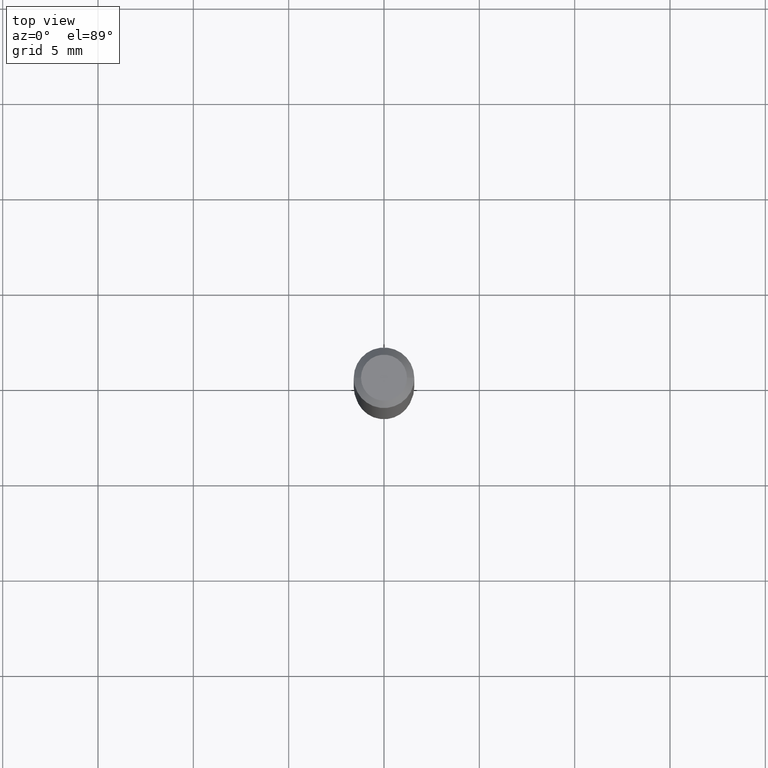
[diagram: clean part render]
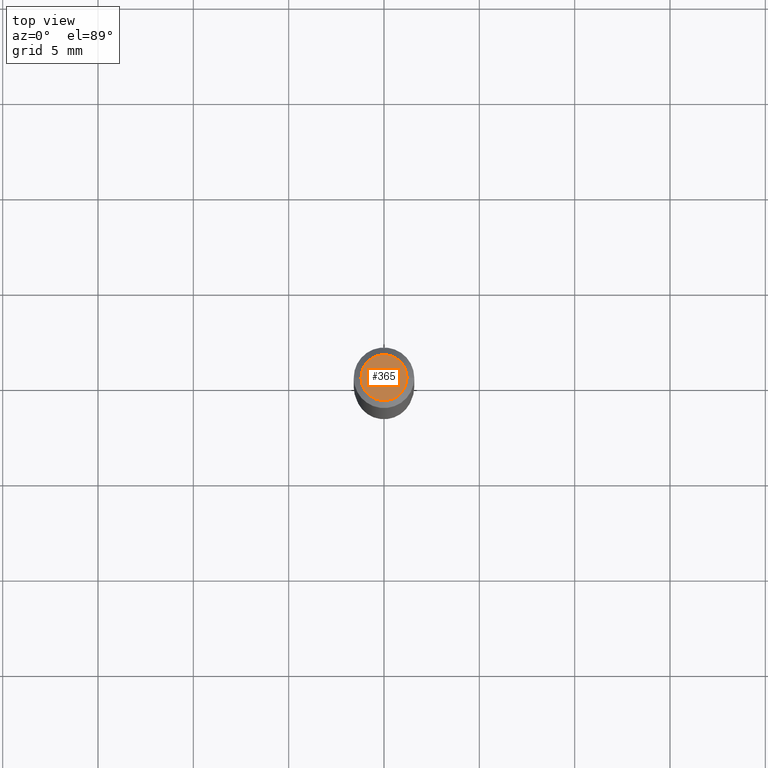
[diagram: same view with one face highlighted and labeled with its STEP entity id]
A machine part, top view. The second image highlights one B-rep face of the part: STEP entity #365.
In plain terms, the highlighted planar face has unit normal (0, -0, -1).
Its self-contained STEP definition (entity closure, byte-faithful):
#24 = VERTEX_POINT ( 'NONE', #179 ) ;
#34 = CIRCLE ( 'NONE', #236, 0.04750000000000000749 ) ;
#39 = ORIENTED_EDGE ( 'NONE', *, *, #147, .T. ) ;
#49 = DIRECTION ( 'NONE',  ( 2.438088387897960049E-29, -3.491481338843145188E-15, -1.000000000000000000 ) ) ;
#60 = CARTESIAN_POINT ( 'NONE',  ( 0.04750000000000000749, -4.035134999187568762E-16, 2.731847993664288856E-16 ) ) ;
#74 = CARTESIAN_POINT ( 'NONE',  ( -6.680649051745406845E-45, 9.538196290434862081E-31, 2.731847993664263218E-16 ) ) ;
#94 = VERTEX_POINT ( 'NONE', #60 ) ;
#115 = DIRECTION ( 'NONE',  ( -2.445468806185136597E-29, 3.491481338843145583E-15, 1.000000000000000000 ) ) ;
#124 = DIRECTION ( 'NONE',  ( -2.445468806185136597E-29, 3.491481338843145583E-15, 1.000000000000000000 ) ) ;
#138 = AXIS2_PLACEMENT_3D ( 'NONE', #364, #49, #369 ) ;
#147 = EDGE_CURVE ( 'NONE', #94, #24, #34, .T. ) ;
#163 = PLANE ( 'NONE',  #138 ) ;
#177 = AXIS2_PLACEMENT_3D ( 'NONE', #74, #124, #434 ) ;
#179 = CARTESIAN_POINT ( 'NONE',  ( -0.04750000000000000749, 3.578768372314221353E-16, 2.731847993664239060E-16 ) ) ;
#226 = ORIENTED_EDGE ( 'NONE', *, *, #294, .T. ) ;
#236 = AXIS2_PLACEMENT_3D ( 'NONE', #504, #115, #317 ) ;
#285 = CIRCLE ( 'NONE', #177, 0.04750000000000000749 ) ;
#294 = EDGE_CURVE ( 'NONE', #24, #94, #285, .T. ) ;
#317 = DIRECTION ( 'NONE',  ( 1.000000000000000000, -6.982962677686266711E-15, 4.852736867747365086E-29 ) ) ;
#326 = EDGE_LOOP ( 'NONE', ( #226, #39 ) ) ;
#364 = CARTESIAN_POINT ( 'NONE',  ( 3.316907271900976589E-16, 0.04750000000000000749, -2.925296391183627249E-17 ) ) ;
#365 = ADVANCED_FACE ( 'NONE', ( #403 ), #163, .F. ) ;
#369 = DIRECTION ( 'NONE',  ( -1.000000000000000000, 6.982962677686265922E-15, -4.876176775795935793E-29 ) ) ;
#403 = FACE_OUTER_BOUND ( 'NONE', #326, .T. ) ;
#434 = DIRECTION ( 'NONE',  ( 1.000000000000000000, -6.982962677686266711E-15, 4.852736867747365086E-29 ) ) ;
#504 = CARTESIAN_POINT ( 'NONE',  ( -6.680649051745406845E-45, 9.538196290434862081E-31, 2.731847993664263218E-16 ) ) ;